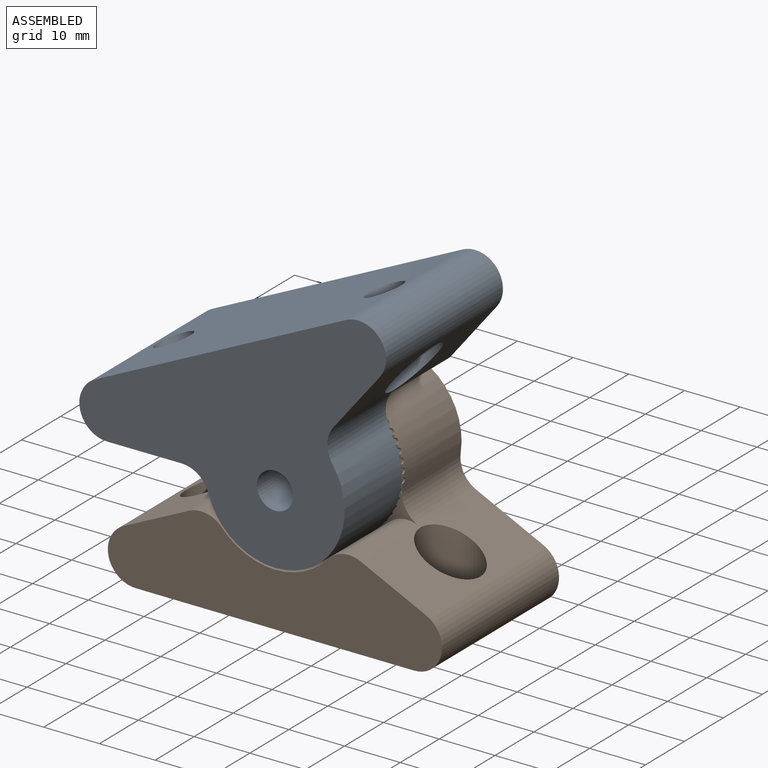
[diagram: assembled view]
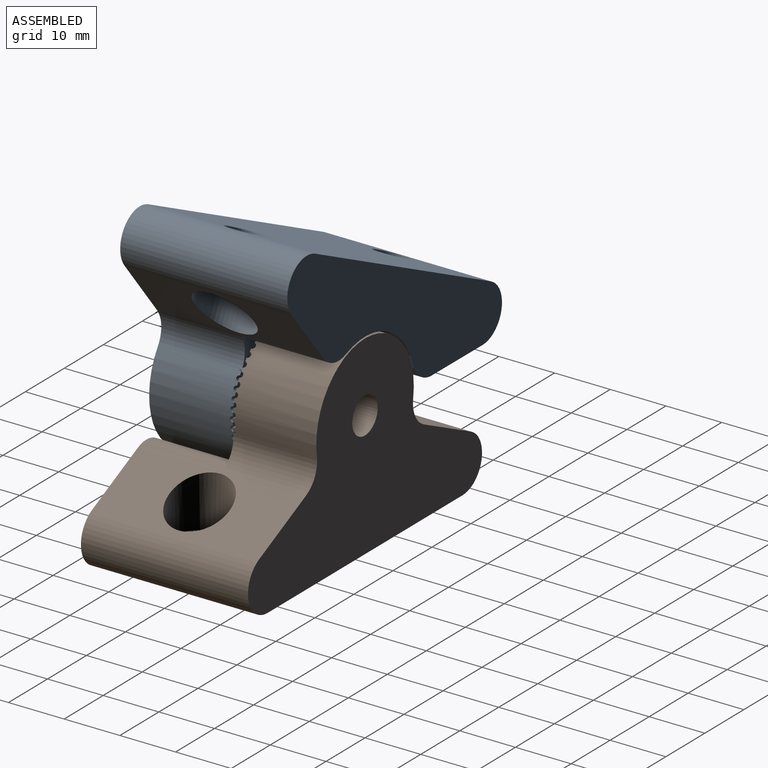
[diagram: assembled view, second angle]
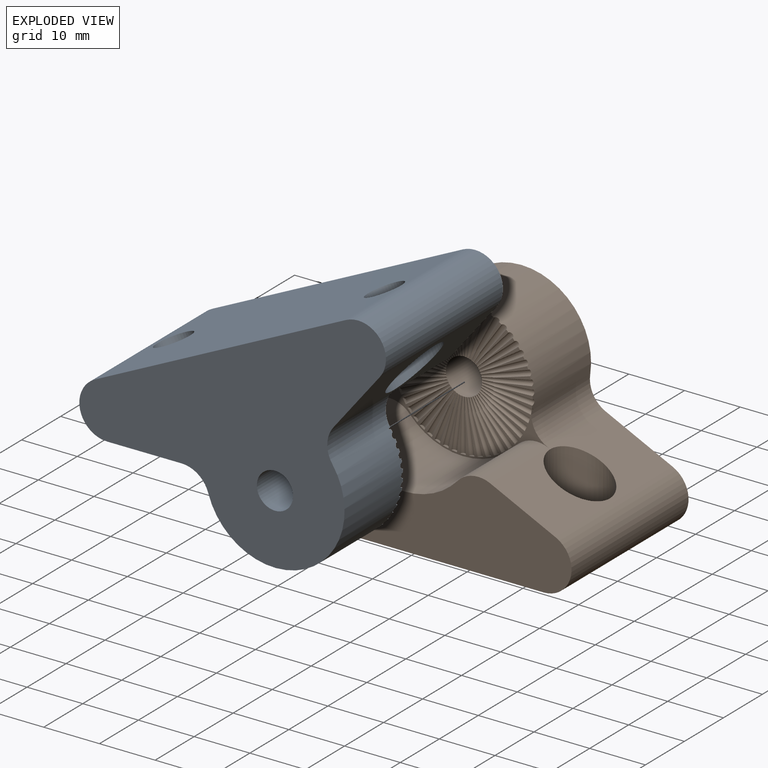
[diagram: exploded view]
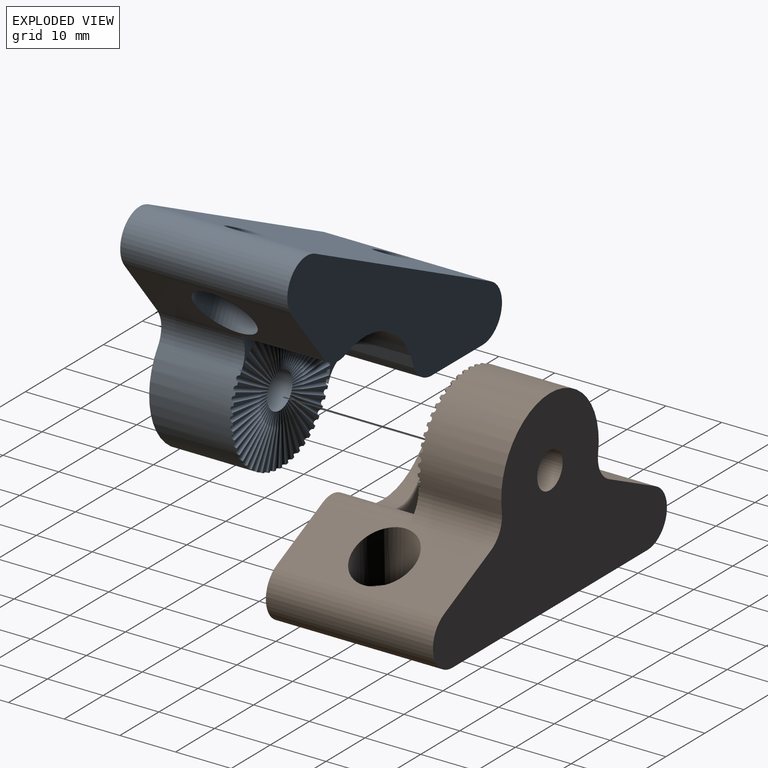
[diagram: exploded view, second angle]
ASSEMBLY  parts=2 mates=2
PART A: 122 faces, bbox 61.1x31.1x36.1 mm
  f0: plane 6.92x0.72mm, normal (0,-1,0), area 2mm2, adj f28,f49,f121
  f1: plane 6.85x1.58mm, normal (0,-1,0), area 2mm2, adj f28,f120,f121
  f2: plane 6.66x2.41mm, normal (0,-1,0), area 2mm2, adj f28,f119,f120
  f3: plane 6.38x3.2mm, normal (0,-1,0), area 2mm2, adj f28,f118,f119
  f4: plane 5.99x3.95mm, normal (0,-1,0), area 2mm2, adj f28,f117,f118
  f5: plane 5.51x4.63mm, normal (0,-1,0), area 2mm2, adj f28,f116,f117
  f6: plane 5.24x4.94mm, normal (0,-1,0), area 2mm2, adj f28,f115,f116
  f7: plane 5.76x4.3mm, normal (0,-1,0), area 2mm2, adj f28,f114,f115
  f8: plane 6.2x3.58mm, normal (0,-1,0), area 2mm2, adj f28,f113,f114
  f9: plane 6.53x2.81mm, normal (0,-1,0), area 2mm2, adj f28,f112,f113
  f10: plane 6.77x2mm, normal (0,-1,0), area 2mm2, adj f28,f111,f112
  f11: plane 6.9x1.15mm, normal (0,-1,0), area 2mm2, adj f28,f110,f111
  f12: plane 6.92x0.57mm, normal (0,-1,0), area 2mm2, adj f28,f109,f110
  f13: plane 6.9x1.15mm, normal (0,-1,0), area 2mm2, adj f28,f107,f109
  f14: plane 30.82x11.41mm, normal (0,-1,0), area 65.1mm2, adj f29,f30,f31,f35,f38,f40,f41,f63
  f15: plane 6.9x1.15mm, normal (0,-1,0), area 2mm2, adj f28,f62,f63
  f16: plane 6.92x0.57mm, normal (0,-1,0), area 2mm2, adj f28,f61,f62
  f17: plane 6.9x1.15mm, normal (0,-1,0), area 2mm2, adj f28,f60,f61
  f18: plane 6.77x2mm, normal (0,-1,0), area 2mm2, adj f28,f59,f60
  f19: plane 6.53x2.81mm, normal (0,-1,0), area 2mm2, adj f28,f58,f59
  f20: plane 6.2x3.58mm, normal (0,-1,0), area 2mm2, adj f28,f57,f58
  f21: plane 5.76x4.3mm, normal (0,-1,0), area 2mm2, adj f28,f56,f57
  f22: plane 5.24x4.94mm, normal (0,-1,0), area 2mm2, adj f28,f55,f56
  f23: plane 5.51x4.63mm, normal (0,-1,0), area 2mm2, adj f28,f54,f55
  f24: plane 5.99x3.95mm, normal (0,-1,0), area 2mm2, adj f28,f53,f54
  f25: plane 6.38x3.2mm, normal (0,-1,0), area 2mm2, adj f28,f52,f53
  f26: plane 6.66x2.41mm, normal (0,-1,0), area 2mm2, adj f28,f51,f52
  f27: plane 6.85x1.58mm, normal (0,-1,0), area 2mm2, adj f28,f50,f51
  f28: cylinder r=12.5mm len=25mm, axis (0,1,0), area 637.1mm2, adj f0,f1,f2,f3,f4,f5,f6,f7
  f29: cylinder r=5mm len=15mm, axis (0,1,0), area 96mm2, adj f14,f28,f35,f37,f63,f64
  f30: cylinder r=5mm len=15mm, axis (0,1,0), area 96mm2, adj f14,f28,f31,f37,f107,f108
  f31: plane 30x12.03mm, normal (-0.43,0,0.9), area 295.6mm2, adj f14,f30,f32,f36,f37,f41,f43
  f32: cylinder r=5mm len=30mm, axis (0,1,0), area 404.3mm2, adj f31,f33,f36,f37
  f33: plane 50x30mm, normal (0,0,-1), area 1433.6mm2, adj f32,f34,f36,f37,f44,f46
  f34: cylinder r=5mm len=30mm, axis (0,1,0), area 404.3mm2, adj f33,f35,f36,f37
  f35: plane 31.08x13.1mm, normal (0.43,0,0.9), area 295.6mm2, adj f14,f29,f34,f36,f37,f40,f47
  f36: plane 60x15.62mm, normal (0,-1,0), area 714.5mm2, adj f31,f32,f33,f34,f35,f38,f40,f41
  f37: plane 60x35mm, normal (0,1,0), area 1193.9mm2, adj f28,f29,f30,f31,f32,f33,f34,f35
  f38: cylinder r=12.8mm len=19.06mm, axis (0,-1,0), area 322.5mm2, adj f14,f36,f40,f41
  f39: plane 6.92x0.72mm, normal (0,-1,0), area 2mm2, adj f28,f49,f50
  f40: cylinder r=5mm len=15mm, axis (0,-1,0), area 96.5mm2, adj f14,f35,f36,f38
  f41: cylinder r=5mm len=15mm, axis (0,-1,0), area 96.5mm2, adj f14,f31,f36,f38
  f42: cylinder r=3.25mm len=14.78mm, axis (0,-1,0), area 301.8mm2, adj f37,f49,f50,f51,f52,f53,f54,f55
  f43: cylinder r=5.35mm len=10.7mm, axis (0,0,1), area 237.3mm2, adj f31,f45
  f44: cylinder r=3.25mm len=6.5mm, axis (0,0,1), area 110.1mm2, adj f33,f45
  f45: plane 10.7x10.7mm, normal (0,0,1), area 56.7mm2, adj f43,f44
  f46: cylinder r=3.25mm len=6.5mm, axis (0,0,1), area 110.1mm2, adj f33,f48
  f47: cylinder r=5.35mm len=10.7mm, axis (0,0,1), area 237.3mm2, adj f35,f48
  f48: plane 10.7x10.7mm, normal (0,0,1), area 56.7mm2, adj f46,f47
  f49: cone r=0.5mm half-angle=1.2deg, axis (0,0,1), area 11mm2, adj f0,f28,f39,f42,f50,f121
  f50: cone r=0.5mm half-angle=1.2deg, axis (0.13,0,0.99), area 11mm2, adj f27,f28,f39,f42,f49,f51
  f51: cone r=0.5mm half-angle=1.2deg, axis (0.25,0,0.97), area 11mm2, adj f26,f27,f28,f42,f50,f52
  f52: cone r=0.5mm half-angle=1.2deg, axis (0.37,0,0.93), area 11mm2, adj f25,f26,f28,f42,f51,f53
  f53: cone r=0.5mm half-angle=1.2deg, axis (0.48,0,0.88), area 11mm2, adj f24,f25,f28,f42,f52,f54
  f54: cone r=0.5mm half-angle=1.2deg, axis (0.59,0,0.81), area 11mm2, adj f23,f24,f28,f42,f53,f55
  f55: cone r=0.5mm half-angle=1.2deg, axis (0.68,0,0.73), area 11mm2, adj f22,f23,f28,f42,f54,f56
  f56: cone r=0.5mm half-angle=1.2deg, axis (0.77,0,0.64), area 11mm2, adj f21,f22,f28,f42,f55,f57
  f57: cone r=0.5mm half-angle=1.2deg, axis (0.84,0,0.54), area 11mm2, adj f20,f21,f28,f42,f56,f58
  f58: cone r=0.5mm half-angle=1.2deg, axis (0.9,0,0.43), area 11mm2, adj f19,f20,f28,f42,f57,f59
  f59: cone r=0.5mm half-angle=1.2deg, axis (0.95,0,0.31), area 11mm2, adj f18,f19,f28,f42,f58,f60
  f60: cone r=0.5mm half-angle=1.2deg, axis (0.98,0,0.19), area 11mm2, adj f17,f18,f28,f42,f59,f61
  f61: cone r=0.5mm half-angle=1.2deg, axis (1,0,0.06), area 11mm2, adj f16,f17,f28,f42,f60,f62
  f62: cone r=0.5mm half-angle=1.2deg, axis (1,0,-0.06), area 11mm2, adj f15,f16,f28,f42,f61,f63
  f63: cone r=0.5mm half-angle=1.2deg, axis (0.98,0,-0.19), area 11mm2, adj f14,f15,f28,f29,f42,f62,f64,f66
  f64: plane 0.75x0.5mm, normal (-0.98,0,0.19), area 0.3mm2, adj f14,f29,f63
  f65: plane 0.95x0.5mm, normal (-0.95,0,0.31), area 0.4mm2, adj f14,f66
  f66: cone r=0.5mm half-angle=1.2deg, axis (0.95,0,-0.31), area 11mm2, adj f14,f42,f63,f65,f68
  f67: plane 0.91x0.5mm, normal (-0.9,0,0.43), area 0.4mm2, adj f14,f68
  f68: cone r=0.5mm half-angle=1.2deg, axis (0.9,0,-0.43), area 11mm2, adj f14,f42,f66,f67,f70
  f69: plane 0.84x0.54mm, normal (-0.84,0,0.54), area 0.4mm2, adj f14,f70
  f70: cone r=0.5mm half-angle=1.2deg, axis (0.84,0,-0.54), area 11mm2, adj f14,f42,f68,f69,f72
  f71: plane 0.77x0.64mm, normal (-0.77,0,0.64), area 0.4mm2, adj f14,f72
  f72: cone r=0.5mm half-angle=1.2deg, axis (0.77,0,-0.64), area 11mm2, adj f14,f42,f70,f71,f74
  f73: plane 0.73x0.68mm, normal (-0.68,0,0.73), area 0.4mm2, adj f14,f74
  f74: cone r=0.5mm half-angle=1.2deg, axis (0.68,0,-0.73), area 11mm2, adj f14,f42,f72,f73,f76
  f75: plane 0.81x0.59mm, normal (-0.59,0,0.81), area 0.4mm2, adj f14,f76
  f76: cone r=0.5mm half-angle=1.2deg, axis (0.59,0,-0.81), area 11mm2, adj f14,f42,f74,f75,f78
  f77: plane 0.88x0.5mm, normal (-0.48,0,0.88), area 0.4mm2, adj f14,f78
  f78: cone r=0.5mm half-angle=1.2deg, axis (0.48,0,-0.88), area 11mm2, adj f14,f42,f76,f77,f80
  f79: plane 0.93x0.5mm, normal (-0.37,0,0.93), area 0.4mm2, adj f14,f80
  f80: cone r=0.5mm half-angle=1.2deg, axis (0.37,0,-0.93), area 11mm2, adj f14,f42,f78,f79,f82
  f81: plane 0.97x0.5mm, normal (-0.25,0,0.97), area 0.4mm2, adj f14,f82
  f82: cone r=0.5mm half-angle=1.2deg, axis (0.25,0,-0.97), area 11mm2, adj f14,f42,f80,f81,f84
  f83: plane 0.99x0.5mm, normal (-0.13,0,0.99), area 0.4mm2, adj f14,f84
  f84: cone r=0.5mm half-angle=1.2deg, axis (0.13,0,-0.99), area 11mm2, adj f14,f42,f82,f83,f86
  f85: plane 1x0.5mm, normal (0,0,1), area 0.4mm2, adj f14,f86
  f86: cone r=0.5mm half-angle=1.2deg, axis (0,0,-1), area 11mm2, adj f14,f42,f84,f85,f88
  f87: plane 0.99x0.5mm, normal (0.13,0,0.99), area 0.4mm2, adj f14,f88
  f88: cone r=0.5mm half-angle=1.2deg, axis (-0.13,0,-0.99), area 11mm2, adj f14,f42,f86,f87,f90
  f89: plane 0.97x0.5mm, normal (0.25,0,0.97), area 0.4mm2, adj f14,f90
  f90: cone r=0.5mm half-angle=1.2deg, axis (-0.25,0,-0.97), area 11mm2, adj f14,f42,f88,f89,f92
  f91: plane 0.93x0.5mm, normal (0.37,0,0.93), area 0.4mm2, adj f14,f92
  f92: cone r=0.5mm half-angle=1.2deg, axis (-0.37,0,-0.93), area 11mm2, adj f14,f42,f90,f91,f94
  f93: plane 0.88x0.5mm, normal (0.48,0,0.88), area 0.4mm2, adj f14,f94
  f94: cone r=0.5mm half-angle=1.2deg, axis (-0.48,0,-0.88), area 11mm2, adj f14,f42,f92,f93,f96
  f95: plane 0.81x0.59mm, normal (0.59,0,0.81), area 0.4mm2, adj f14,f96
  f96: cone r=0.5mm half-angle=1.2deg, axis (-0.59,0,-0.81), area 11mm2, adj f14,f42,f94,f95,f98
  f97: plane 0.73x0.68mm, normal (0.68,0,0.73), area 0.4mm2, adj f14,f98
  f98: cone r=0.5mm half-angle=1.2deg, axis (-0.68,0,-0.73), area 11mm2, adj f14,f42,f96,f97,f100
  f99: plane 0.77x0.64mm, normal (0.77,0,0.64), area 0.4mm2, adj f14,f100
  f100: cone r=0.5mm half-angle=1.2deg, axis (-0.77,0,-0.64), area 11mm2, adj f14,f42,f98,f99,f102
  f101: plane 0.84x0.54mm, normal (0.84,0,0.54), area 0.4mm2, adj f14,f102
  f102: cone r=0.5mm half-angle=1.2deg, axis (-0.84,0,-0.54), area 11mm2, adj f14,f42,f100,f101,f104
  f103: plane 0.91x0.5mm, normal (0.9,0,0.43), area 0.4mm2, adj f14,f104
  f104: cone r=0.5mm half-angle=1.2deg, axis (-0.9,0,-0.43), area 11mm2, adj f14,f42,f102,f103,f106
  f105: plane 0.95x0.5mm, normal (0.95,0,0.31), area 0.4mm2, adj f14,f106
  f106: cone r=0.5mm half-angle=1.2deg, axis (-0.95,0,-0.31), area 11mm2, adj f14,f42,f104,f105,f107
  f107: cone r=0.5mm half-angle=1.2deg, axis (-0.98,0,-0.19), area 11mm2, adj f13,f14,f28,f30,f42,f106,f108,f109
  f108: plane 0.75x0.5mm, normal (0.98,0,0.19), area 0.3mm2, adj f14,f30,f107
  f109: cone r=0.5mm half-angle=1.2deg, axis (-1,0,-0.06), area 11mm2, adj f12,f13,f28,f42,f107,f110
  f110: cone r=0.5mm half-angle=1.2deg, axis (-1,0,0.06), area 11mm2, adj f11,f12,f28,f42,f109,f111
  f111: cone r=0.5mm half-angle=1.2deg, axis (-0.98,0,0.19), area 11mm2, adj f10,f11,f28,f42,f110,f112
  f112: cone r=0.5mm half-angle=1.2deg, axis (-0.95,0,0.31), area 11mm2, adj f9,f10,f28,f42,f111,f113
  f113: cone r=0.5mm half-angle=1.2deg, axis (-0.9,0,0.43), area 11mm2, adj f8,f9,f28,f42,f112,f114
  f114: cone r=0.5mm half-angle=1.2deg, axis (-0.84,0,0.54), area 11mm2, adj f7,f8,f28,f42,f113,f115
  f115: cone r=0.5mm half-angle=1.2deg, axis (-0.77,0,0.64), area 11mm2, adj f6,f7,f28,f42,f114,f116
  f116: cone r=0.5mm half-angle=1.2deg, axis (-0.68,0,0.73), area 11mm2, adj f5,f6,f28,f42,f115,f117
  f117: cone r=0.5mm half-angle=1.2deg, axis (-0.59,0,0.81), area 11mm2, adj f4,f5,f28,f42,f116,f118
  f118: cone r=0.5mm half-angle=1.2deg, axis (-0.48,0,0.88), area 11mm2, adj f3,f4,f28,f42,f117,f119
  f119: cone r=0.5mm half-angle=1.2deg, axis (-0.37,0,0.93), area 11mm2, adj f2,f3,f28,f42,f118,f120
  f120: cone r=0.5mm half-angle=1.2deg, axis (-0.25,0,0.97), area 11mm2, adj f1,f2,f28,f42,f119,f121
  f121: cone r=0.5mm half-angle=1.2deg, axis (-0.13,0,0.99), area 11mm2, adj f0,f1,f28,f42,f49,f120
PART B: same geometry as A
PLACE A rot(axis=(-0.97,0,-0.22),180deg) t=(-9.76,0,42.77)mm
PLACE B at identity fixed
MATE cylindrical B.f28 <-> A.f28  axis (0,1,0) through (0,15,22.5)mm
MATE planar B.f28 <-> A.f28  axis (0,-1,0) through (0,0,22.5)mm
